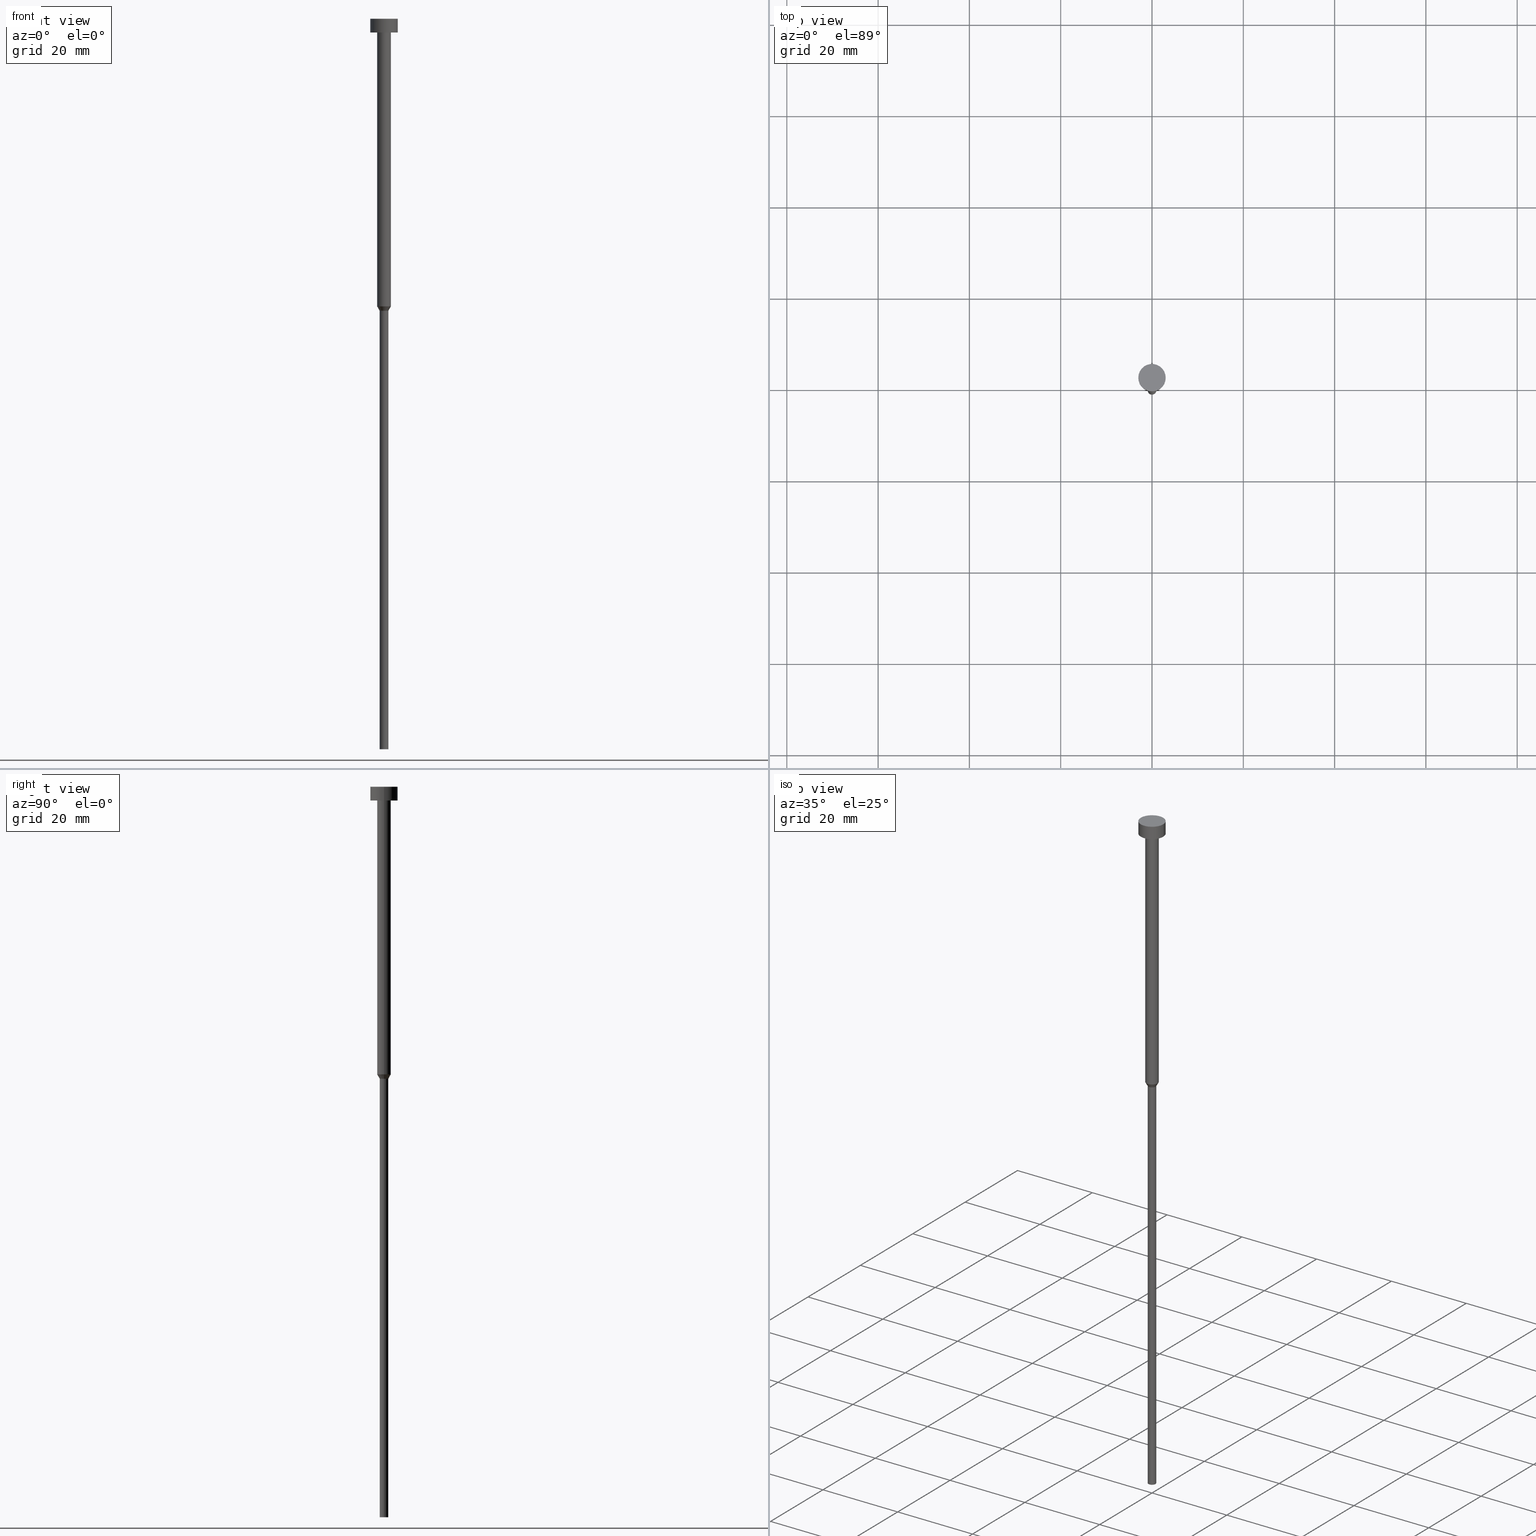
[diagram: canonical four-view strip — front | top / right | iso, engineering-drawing reading convention]
A machine part, canonical four-view strip (front | top / right | iso — engineering-drawing reading convention). The complete STEP part file that produces these views, byte-faithful:
ISO-10303-21;
HEADER;
FILE_DESCRIPTION (( 'STEP AP203' ),
    '1' );
FILE_NAME ('4d61.STEP',
    '2023-02-13T10:01:38',
    ( '' ),
    ( '' ),
    'SwSTEP 2.0',
    'SolidWorks 2019',
    '' );
FILE_SCHEMA (( 'CONFIG_CONTROL_DESIGN' ));
ENDSEC;

DATA;
#1 = PRODUCT_RELATED_PRODUCT_CATEGORY ( 'detail', '', ( #353 ) ) ;
#2 = DIRECTION ( 'NONE',  ( 1.000000000000000000, 0.000000000000000000, 0.000000000000000000 ) ) ;
#3 = ORIENTED_EDGE ( 'NONE', *, *, #245, .F. ) ;
#4 = EDGE_CURVE ( 'NONE', #87, #135, #141, .T. ) ;
#5 = EDGE_LOOP ( 'NONE', ( #285, #322, #126, #305 ) ) ;
#6 = VERTEX_POINT ( 'NONE', #338 ) ;
#7 = CARTESIAN_POINT ( 'NONE',  ( 0.000000000000000000, 0.000000000000000000, 0.000000000000000000 ) ) ;
#8 = FACE_OUTER_BOUND ( 'NONE', #60, .T. ) ;
#9 = AXIS2_PLACEMENT_3D ( 'NONE', #130, #159, #2 ) ;
#10 = FACE_BOUND ( 'NONE', #192, .T. ) ;
#11 = CARTESIAN_POINT ( 'NONE',  ( 0.000000000000000000, 0.000000000000000000, -63.95262794416288443 ) ) ;
#12 = CALENDAR_DATE ( 2023, 13, 2 ) ;
#13 = CARTESIAN_POINT ( 'NONE',  ( 0.000000000000000000, 0.000000000000000000, -160.0000000000000000 ) ) ;
#14 = ADVANCED_FACE ( 'NONE', ( #332 ), #92, .T. ) ;
#15 = CALENDAR_DATE ( 2023, 13, 2 ) ;
#16 = DIRECTION ( 'NONE',  ( -0.000000000000000000, -0.000000000000000000, 1.000000000000000000 ) ) ;
#17 = DATE_TIME_ROLE ( 'creation_date' ) ;
#18 = DIRECTION ( 'NONE',  ( -0.000000000000000000, -0.000000000000000000, 1.000000000000000000 ) ) ;
#19 = ORIENTED_EDGE ( 'NONE', *, *, #269, .T. ) ;
#20 = EDGE_CURVE ( 'NONE', #134, #162, #227, .T. ) ;
#21 = APPROVAL_PERSON_ORGANIZATION ( #46, #326, #259 ) ;
#22 = APPROVAL_DATE_TIME ( #202, #133 ) ;
#23 = LINE ( 'NONE', #351, #97 ) ;
#24 = DIRECTION ( 'NONE',  ( -0.4999999999999993339, 6.123233995736757408E-17, 0.8660254037844389297 ) ) ;
#25 = CARTESIAN_POINT ( 'NONE',  ( 1.500000000000000000, 0.000000000000000000, -3.000000000000000888 ) ) ;
#26 = VECTOR ( 'NONE', #337, 1000.000000000000114 ) ;
#27 = ORIENTED_EDGE ( 'NONE', *, *, #188, .T. ) ;
#28 = ORIENTED_EDGE ( 'NONE', *, *, #29, .T. ) ;
#29 = EDGE_CURVE ( 'NONE', #217, #277, #230, .T. ) ;
#30 = ORIENTED_EDGE ( 'NONE', *, *, #39, .T. ) ;
#31 = AXIS2_PLACEMENT_3D ( 'NONE', #89, #138, #308 ) ;
#32 = DIRECTION ( 'NONE',  ( 1.000000000000000000, 0.000000000000000000, 0.000000000000000000 ) ) ;
#33 = CARTESIAN_POINT ( 'NONE',  ( 3.000000000000000000, 0.000000000000000000, -3.000000000000000888 ) ) ;
#34 = CC_DESIGN_PERSON_AND_ORGANIZATION_ASSIGNMENT ( #42, #100, ( #190 ) ) ;
#35 = AXIS2_PLACEMENT_3D ( 'NONE', #325, #242, #53 ) ;
#36 = DIRECTION ( 'NONE',  ( 1.000000000000000000, 0.000000000000000000, 0.000000000000000000 ) ) ;
#37 = LOCAL_TIME ( 11, 1, 38.00000000000000000, #67 ) ;
#38 = CYLINDRICAL_SURFACE ( 'NONE', #191, 0.9499999999999998446 ) ;
#39 = EDGE_CURVE ( 'NONE', #41, #6, #173, .T. ) ;
#40 = PERSON_AND_ORGANIZATION ( #77, #140 ) ;
#41 = VERTEX_POINT ( 'NONE', #167 ) ;
#42 = PERSON_AND_ORGANIZATION ( #77, #140 ) ;
#43 = DIRECTION ( 'NONE',  ( -0.000000000000000000, -0.000000000000000000, 1.000000000000000000 ) ) ;
#44 = PERSON_AND_ORGANIZATION ( #77, #140 ) ;
#45 = DIRECTION ( 'NONE',  ( -0.000000000000000000, -0.000000000000000000, 1.000000000000000000 ) ) ;
#46 = PERSON_AND_ORGANIZATION ( #77, #140 ) ;
#47 = LINE ( 'NONE', #152, #189 ) ;
#48 = EDGE_CURVE ( 'NONE', #135, #277, #181, .T. ) ;
#49 = APPROVAL_ROLE ( '' ) ;
#50 = CYLINDRICAL_SURFACE ( 'NONE', #258, 3.000000000000000000 ) ;
#51 = DIRECTION ( 'NONE',  ( 1.000000000000000000, 0.000000000000000000, 0.000000000000000000 ) ) ;
#52 = CARTESIAN_POINT ( 'NONE',  ( 0.000000000000000000, 0.000000000000000000, 0.000000000000000000 ) ) ;
#53 = DIRECTION ( 'NONE',  ( 1.000000000000000000, 0.000000000000000000, 0.000000000000000000 ) ) ;
#54 = VERTEX_POINT ( 'NONE', #257 ) ;
#55 = LOCAL_TIME ( 11, 1, 38.00000000000000000, #347 ) ;
#56 = DIRECTION ( 'NONE',  ( 1.000000000000000000, 0.000000000000000000, 0.000000000000000000 ) ) ;
#57 = CIRCLE ( 'NONE', #115, 0.9499999999999998446 ) ;
#58 = ORIENTED_EDGE ( 'NONE', *, *, #157, .F. ) ;
#59 = VERTEX_POINT ( 'NONE', #168 ) ;
#60 = EDGE_LOOP ( 'NONE', ( #199, #114 ) ) ;
#61 = DIRECTION ( 'NONE',  ( 1.000000000000000000, 0.000000000000000000, 0.000000000000000000 ) ) ;
#62 = DIRECTION ( 'NONE',  ( -0.000000000000000000, -0.000000000000000000, 1.000000000000000000 ) ) ;
#63 = CONICAL_SURFACE ( 'NONE', #250, 1.500000000000000000, 0.5235987755982981495 ) ;
#64 = FACE_OUTER_BOUND ( 'NONE', #82, .T. ) ;
#65 = APPROVAL_STATUS ( 'not_yet_approved' ) ;
#66 = DIRECTION ( 'NONE',  ( -1.000000000000000000, 0.000000000000000000, -0.000000000000000000 ) ) ;
#67 = COORDINATED_UNIVERSAL_TIME_OFFSET ( 1, 0, .AHEAD. ) ;
#68 = DIRECTION ( 'NONE',  ( -0.000000000000000000, -0.000000000000000000, 1.000000000000000000 ) ) ;
#69 = CARTESIAN_POINT ( 'NONE',  ( 0.000000000000000000, 0.000000000000000000, 0.000000000000000000 ) ) ;
#70 = AXIS2_PLACEMENT_3D ( 'NONE', #296, #179, #290 ) ;
#71 = VECTOR ( 'NONE', #223, 1000.000000000000000 ) ;
#72 = APPROVAL_DATE_TIME ( #295, #326 ) ;
#73 = DIRECTION ( 'NONE',  ( 1.000000000000000000, 0.000000000000000000, 0.000000000000000000 ) ) ;
#74 = APPROVAL_DATE_TIME ( #287, #336 ) ;
#75 = DIRECTION ( 'NONE',  ( 1.000000000000000000, 0.000000000000000000, 0.000000000000000000 ) ) ;
#76 = ORIENTED_EDGE ( 'NONE', *, *, #256, .F. ) ;
#77 = PERSON ( 'NEUR�EN�', 'NEUR�EN�', 'NEUR�EN�', ('NEUR�EN�'), ('NEUR�EN�'), ('NEUR�EN�') ) ;
#78 = DIRECTION ( 'NONE',  ( 1.000000000000000000, 0.000000000000000000, 0.000000000000000000 ) ) ;
#79 = ADVANCED_FACE ( 'NONE', ( #145 ), #38, .T. ) ;
#80 = CLOSED_SHELL ( 'NONE', ( #210, #286, #184, #79, #14, #224, #84, #297, #136, #170, #104 ) ) ;
#81 = CARTESIAN_POINT ( 'NONE',  ( 0.000000000000000000, 0.000000000000000000, -63.95262794416288443 ) ) ;
#82 = EDGE_LOOP ( 'NONE', ( #310, #132 ) ) ;
#83 = CC_DESIGN_APPROVAL ( #326, ( #163 ) ) ;
#84 = ADVANCED_FACE ( 'NONE', ( #248 ), #174, .T. ) ;
#85 = EDGE_LOOP ( 'NONE', ( #198, #273, #76, #228 ) ) ;
#86 = ORIENTED_EDGE ( 'NONE', *, *, #20, .T. ) ;
#87 = VERTEX_POINT ( 'NONE', #33 ) ;
#88 = AXIS2_PLACEMENT_3D ( 'NONE', #81, #300, #56 ) ;
#89 = CARTESIAN_POINT ( 'NONE',  ( 0.000000000000000000, 0.000000000000000000, -3.673940397442059868E-16 ) ) ;
#90 = DIRECTION ( 'NONE',  ( 0.000000000000000000, -0.000000000000000000, 1.000000000000000000 ) ) ;
#91 = CARTESIAN_POINT ( 'NONE',  ( 0.9499999999999998446, 0.000000000000000000, -63.95262794416288443 ) ) ;
#92 = PLANE ( 'NONE',  #186 ) ;
#93 = CC_DESIGN_DATE_AND_TIME_ASSIGNMENT ( #343, #17, ( #107 ) ) ;
#94 = CALENDAR_DATE ( 2023, 13, 2 ) ;
#95 = ORIENTED_EDGE ( 'NONE', *, *, #117, .T. ) ;
#96 = LINE ( 'NONE', #348, #164 ) ;
#97 = VECTOR ( 'NONE', #16, 1000.000000000000000 ) ;
#98 = DIRECTION ( 'NONE',  ( 1.000000000000000000, 0.000000000000000000, 0.000000000000000000 ) ) ;
#99 = CIRCLE ( 'NONE', #195, 3.000000000000000000 ) ;
#100 = PERSON_AND_ORGANIZATION_ROLE ( 'design_supplier' ) ;
#101 = DIRECTION ( 'NONE',  ( -1.000000000000000000, 0.000000000000000000, -0.000000000000000000 ) ) ;
#102 = EDGE_LOOP ( 'NONE', ( #137, #19, #106, #3 ) ) ;
#103 = FACE_OUTER_BOUND ( 'NONE', #193, .T. ) ;
#104 = ADVANCED_FACE ( 'NONE', ( #8 ), #226, .T. ) ;
#105 = CARTESIAN_POINT ( 'NONE',  ( 0.000000000000000000, 0.000000000000000000, -63.00000000000000000 ) ) ;
#106 = ORIENTED_EDGE ( 'NONE', *, *, #4, .T. ) ;
#107 = PRODUCT_DEFINITION ( 'NEZN�M�', '', #190, #246 ) ;
#108 = ORIENTED_EDGE ( 'NONE', *, *, #293, .F. ) ;
#109 = ORIENTED_EDGE ( 'NONE', *, *, #4, .F. ) ;
#110 = EDGE_CURVE ( 'NONE', #134, #6, #120, .T. ) ;
#111 = DIRECTION ( 'NONE',  ( -0.000000000000000000, -0.000000000000000000, 1.000000000000000000 ) ) ;
#112 = LOCAL_TIME ( 11, 1, 38.00000000000000000, #155 ) ;
#113 = AXIS2_PLACEMENT_3D ( 'NONE', #344, #206, #73 ) ;
#114 = ORIENTED_EDGE ( 'NONE', *, *, #245, .T. ) ;
#115 = AXIS2_PLACEMENT_3D ( 'NONE', #254, #282, #36 ) ;
#116 = CARTESIAN_POINT ( 'NONE',  ( -3.000000000000000000, 3.673940397442059868E-16, 0.000000000000000000 ) ) ;
#117 = EDGE_CURVE ( 'NONE', #278, #41, #57, .T. ) ;
#118 = ORIENTED_EDGE ( 'NONE', *, *, #48, .F. ) ;
#119 = DIRECTION ( 'NONE',  ( 0.000000000000000000, 0.000000000000000000, -1.000000000000000000 ) ) ;
#120 = CIRCLE ( 'NONE', #274, 0.9499999999999998446 ) ;
#121 = DIRECTION ( 'NONE',  ( 1.000000000000000000, 0.000000000000000000, 0.000000000000000000 ) ) ;
#122 = CC_DESIGN_PERSON_AND_ORGANIZATION_ASSIGNMENT ( #44, #266, ( #107 ) ) ;
#123 = DIRECTION ( 'NONE',  ( 1.000000000000000000, 0.000000000000000000, 0.000000000000000000 ) ) ;
#124 = PERSON_AND_ORGANIZATION ( #77, #140 ) ;
#125 = DIRECTION ( 'NONE',  ( -0.000000000000000000, -0.000000000000000000, 1.000000000000000000 ) ) ;
#126 = ORIENTED_EDGE ( 'NONE', *, *, #234, .F. ) ;
#127 = APPROVAL_STATUS ( 'not_yet_approved' ) ;
#128 = DIRECTION ( 'NONE',  ( -0.000000000000000000, -0.000000000000000000, 1.000000000000000000 ) ) ;
#129 = DIRECTION ( 'NONE',  ( 1.000000000000000000, 0.000000000000000000, 0.000000000000000000 ) ) ;
#130 = CARTESIAN_POINT ( 'NONE',  ( 0.000000000000000000, 0.000000000000000000, -160.0000000000000000 ) ) ;
#131 = CC_DESIGN_APPROVAL ( #336, ( #107 ) ) ;
#132 = ORIENTED_EDGE ( 'NONE', *, *, #269, .F. ) ;
#133 = APPROVAL ( #127, 'NEUR�EN�' ) ;
#134 = VERTEX_POINT ( 'NONE', #91 ) ;
#135 = VERTEX_POINT ( 'NONE', #253 ) ;
#136 = ADVANCED_FACE ( 'NONE', ( #10, #64 ), #270, .T. ) ;
#137 = ORIENTED_EDGE ( 'NONE', *, *, #29, .F. ) ;
#138 = DIRECTION ( 'NONE',  ( -0.000000000000000000, -0.000000000000000000, 1.000000000000000000 ) ) ;
#139 = CIRCLE ( 'NONE', #148, 1.500000000000000000 ) ;
#140 = ORGANIZATION ( 'NEUR�EN�', 'NEUR�EN�', '' ) ;
#141 = LINE ( 'NONE', #313, #71 ) ;
#142 = EDGE_CURVE ( 'NONE', #6, #54, #96, .T. ) ;
#143 = DIRECTION ( 'NONE',  ( 1.000000000000000000, 0.000000000000000000, 0.000000000000000000 ) ) ;
#144 = CALENDAR_DATE ( 2023, 13, 2 ) ;
#145 = FACE_OUTER_BOUND ( 'NONE', #247, .T. ) ;
#146 = PERSON_AND_ORGANIZATION_ROLE ( 'creator' ) ;
#147 = CARTESIAN_POINT ( 'NONE',  ( 0.000000000000000000, 0.000000000000000000, -3.000000000000000888 ) ) ;
#148 = AXIS2_PLACEMENT_3D ( 'NONE', #263, #18, #123 ) ;
#149 = AXIS2_PLACEMENT_3D ( 'NONE', #105, #128, #98 ) ;
#150 = CARTESIAN_POINT ( 'NONE',  ( 0.000000000000000000, 0.000000000000000000, -3.000000000000000888 ) ) ;
#151 = APPROVAL_ROLE ( '' ) ;
#152 = CARTESIAN_POINT ( 'NONE',  ( -1.500000000000000000, 1.836970198721029934E-16, 0.000000000000000000 ) ) ;
#153 = ADVANCED_BREP_SHAPE_REPRESENTATION ( '4d61', ( #251, #268 ), #291 ) ;
#154 = ORIENTED_EDGE ( 'NONE', *, *, #197, .T. ) ;
#155 = COORDINATED_UNIVERSAL_TIME_OFFSET ( 1, 0, .AHEAD. ) ;
#156 = CARTESIAN_POINT ( 'NONE',  ( 0.000000000000000000, 0.000000000000000000, 0.000000000000000000 ) ) ;
#157 = EDGE_CURVE ( 'NONE', #54, #162, #260, .T. ) ;
#158 = FACE_OUTER_BOUND ( 'NONE', #102, .T. ) ;
#159 = DIRECTION ( 'NONE',  ( -0.000000000000000000, -0.000000000000000000, 1.000000000000000000 ) ) ;
#160 = DIRECTION ( 'NONE',  ( -0.000000000000000000, -0.000000000000000000, 1.000000000000000000 ) ) ;
#161 = CC_DESIGN_PERSON_AND_ORGANIZATION_ASSIGNMENT ( #124, #314, ( #163 ) ) ;
#162 = VERTEX_POINT ( 'NONE', #319 ) ;
#163 = SECURITY_CLASSIFICATION ( '', '', #237 ) ;
#164 = VECTOR ( 'NONE', #24, 1000.000000000000114 ) ;
#165 = EDGE_LOOP ( 'NONE', ( #154, #28, #118, #109 ) ) ;
#166 = EDGE_LOOP ( 'NONE', ( #108, #211, #349, #244 ) ) ;
#167 = CARTESIAN_POINT ( 'NONE',  ( -0.9499999999999998446, 1.163414459189985436E-16, -160.0000000000000000 ) ) ;
#168 = CARTESIAN_POINT ( 'NONE',  ( -1.500000000000000000, 1.836970198721029934E-16, -3.000000000000000888 ) ) ;
#169 = DIRECTION ( 'NONE',  ( 1.000000000000000000, 0.000000000000000000, 0.000000000000000000 ) ) ;
#170 = ADVANCED_FACE ( 'NONE', ( #158 ), #50, .T. ) ;
#171 = CIRCLE ( 'NONE', #345, 1.500000000000000000 ) ;
#172 = APPROVAL_PERSON_ORGANIZATION ( #312, #336, #49 ) ;
#173 = LINE ( 'NONE', #309, #334 ) ;
#174 = CONICAL_SURFACE ( 'NONE', #225, 1.500000000000000000, 0.5235987755982981495 ) ;
#175 = COORDINATED_UNIVERSAL_TIME_OFFSET ( 1, 0, .AHEAD. ) ;
#176 = CARTESIAN_POINT ( 'NONE',  ( 1.500000000000000000, 0.000000000000000000, -63.00000000000000000 ) ) ;
#177 = DATE_TIME_ROLE ( 'classification_date' ) ;
#178 = DIRECTION ( 'NONE',  ( 1.000000000000000000, 0.000000000000000000, 0.000000000000000000 ) ) ;
#179 = DIRECTION ( 'NONE',  ( -0.000000000000000000, -0.000000000000000000, 1.000000000000000000 ) ) ;
#180 = CC_DESIGN_APPROVAL ( #133, ( #190 ) ) ;
#181 = CIRCLE ( 'NONE', #31, 3.000000000000000000 ) ;
#182 = DIRECTION ( 'NONE',  ( 0.000000000000000000, 0.000000000000000000, -1.000000000000000000 ) ) ;
#183 = CARTESIAN_POINT ( 'NONE',  ( 0.000000000000000000, 0.000000000000000000, -3.673940397442059868E-16 ) ) ;
#184 = ADVANCED_FACE ( 'NONE', ( #315 ), #63, .T. ) ;
#185 = CARTESIAN_POINT ( 'NONE',  ( 0.000000000000000000, 0.000000000000000000, -3.000000000000000888 ) ) ;
#186 = AXIS2_PLACEMENT_3D ( 'NONE', #13, #119, #66 ) ;
#187 = APPLICATION_CONTEXT ( 'configuration controlled 3d designs of mechanical parts and assemblies' ) ;
#188 = EDGE_CURVE ( 'NONE', #278, #134, #23, .T. ) ;
#189 = VECTOR ( 'NONE', #265, 1000.000000000000000 ) ;
#190 = PRODUCT_DEFINITION_FORMATION_WITH_SPECIFIED_SOURCE ( 'LIBOVOLN�', '', #353, .NOT_KNOWN. ) ;
#191 = AXIS2_PLACEMENT_3D ( 'NONE', #7, #280, #32 ) ;
#192 = EDGE_LOOP ( 'NONE', ( #302, #329 ) ) ;
#193 = EDGE_LOOP ( 'NONE', ( #328, #303, #27, #236 ) ) ;
#194 = EDGE_LOOP ( 'NONE', ( #203, #281 ) ) ;
#195 = AXIS2_PLACEMENT_3D ( 'NONE', #185, #43, #51 ) ;
#196 = CARTESIAN_POINT ( 'NONE',  ( 0.000000000000000000, 0.000000000000000000, -63.00000000000000000 ) ) ;
#197 = EDGE_CURVE ( 'NONE', #87, #217, #272, .T. ) ;
#198 = ORIENTED_EDGE ( 'NONE', *, *, #110, .T. ) ;
#199 = ORIENTED_EDGE ( 'NONE', *, *, #48, .T. ) ;
#200 = APPLICATION_PROTOCOL_DEFINITION ( 'international standard', 'config_control_design', 1994, #330 ) ;
#201 = CC_DESIGN_DATE_AND_TIME_ASSIGNMENT ( #208, #177, ( #163 ) ) ;
#202 = DATE_AND_TIME ( #339, #112 ) ;
#203 = ORIENTED_EDGE ( 'NONE', *, *, #117, .F. ) ;
#204 = MECHANICAL_CONTEXT ( 'NONE', #187, 'mechanical' ) ;
#205 = CARTESIAN_POINT ( 'NONE',  ( -3.000000000000000000, 3.673940397442059868E-16, -3.000000000000000888 ) ) ;
#206 = DIRECTION ( 'NONE',  ( -0.000000000000000000, -0.000000000000000000, 1.000000000000000000 ) ) ;
#207 = AXIS2_PLACEMENT_3D ( 'NONE', #69, #235, #75 ) ;
#208 = DATE_AND_TIME ( #144, #55 ) ;
#209 = DIRECTION ( 'NONE',  ( 1.000000000000000000, 0.000000000000000000, 0.000000000000000000 ) ) ;
#210 = ADVANCED_FACE ( 'NONE', ( #238 ), #212, .T. ) ;
#211 = ORIENTED_EDGE ( 'NONE', *, *, #157, .T. ) ;
#212 = CYLINDRICAL_SURFACE ( 'NONE', #283, 3.000000000000000000 ) ;
#213 =( NAMED_UNIT ( * ) PLANE_ANGLE_UNIT ( ) SI_UNIT ( $, .RADIAN. ) );
#214 = CIRCLE ( 'NONE', #307, 3.000000000000000000 ) ;
#215 = LINE ( 'NONE', #275, #317 ) ;
#216 =( LENGTH_UNIT ( ) NAMED_UNIT ( * ) SI_UNIT ( .MILLI., .METRE. ) );
#217 = VERTEX_POINT ( 'NONE', #205 ) ;
#218 = LOCAL_TIME ( 11, 1, 38.00000000000000000, #175 ) ;
#219 = EDGE_LOOP ( 'NONE', ( #243, #306, #86, #58 ) ) ;
#220 = VECTOR ( 'NONE', #288, 1000.000000000000000 ) ;
#221 = CC_DESIGN_PERSON_AND_ORGANIZATION_ASSIGNMENT ( #229, #264, ( #353 ) ) ;
#222 = ORIENTED_EDGE ( 'NONE', *, *, #188, .F. ) ;
#223 = DIRECTION ( 'NONE',  ( -0.000000000000000000, -0.000000000000000000, 1.000000000000000000 ) ) ;
#224 = ADVANCED_FACE ( 'NONE', ( #103 ), #354, .T. ) ;
#225 = AXIS2_PLACEMENT_3D ( 'NONE', #196, #111, #61 ) ;
#226 = PLANE ( 'NONE',  #279 ) ;
#227 = LINE ( 'NONE', #176, #26 ) ;
#228 = ORIENTED_EDGE ( 'NONE', *, *, #20, .F. ) ;
#229 = PERSON_AND_ORGANIZATION ( #77, #140 ) ;
#230 = LINE ( 'NONE', #116, #220 ) ;
#231 = CARTESIAN_POINT ( 'NONE',  ( -3.000000000000000000, 3.673940397442059868E-16, -3.673940397442059868E-16 ) ) ;
#232 = CARTESIAN_POINT ( 'NONE',  ( 0.9499999999999998446, 0.000000000000000000, -160.0000000000000000 ) ) ;
#233 = CIRCLE ( 'NONE', #88, 0.9499999999999998446 ) ;
#234 = EDGE_CURVE ( 'NONE', #340, #59, #284, .T. ) ;
#235 = DIRECTION ( 'NONE',  ( -0.000000000000000000, -0.000000000000000000, 1.000000000000000000 ) ) ;
#236 = ORIENTED_EDGE ( 'NONE', *, *, #352, .F. ) ;
#237 = SECURITY_CLASSIFICATION_LEVEL ( 'unclassified' ) ;
#238 = FACE_OUTER_BOUND ( 'NONE', #165, .T. ) ;
#239 = PRODUCT_DEFINITION_SHAPE ( 'NONE', 'NONE',  #107 ) ;
#240 =( NAMED_UNIT ( * ) SI_UNIT ( $, .STERADIAN. ) SOLID_ANGLE_UNIT ( ) );
#241 = CIRCLE ( 'NONE', #9, 0.9499999999999998446 ) ;
#242 = DIRECTION ( 'NONE',  ( -0.000000000000000000, -0.000000000000000000, 1.000000000000000000 ) ) ;
#243 = ORIENTED_EDGE ( 'NONE', *, *, #142, .F. ) ;
#244 = ORIENTED_EDGE ( 'NONE', *, *, #276, .F. ) ;
#245 = EDGE_CURVE ( 'NONE', #277, #135, #214, .T. ) ;
#246 = DESIGN_CONTEXT ( 'detailed design', #330, 'design' ) ;
#247 = EDGE_LOOP ( 'NONE', ( #95, #30, #331, #222 ) ) ;
#248 = FACE_OUTER_BOUND ( 'NONE', #219, .T. ) ;
#249 = DIRECTION ( 'NONE',  ( -0.000000000000000000, -0.000000000000000000, 1.000000000000000000 ) ) ;
#250 = AXIS2_PLACEMENT_3D ( 'NONE', #321, #68, #129 ) ;
#251 = MANIFOLD_SOLID_BREP ( 'Rotovat1', #80 ) ;
#252 = APPROVAL_PERSON_ORGANIZATION ( #40, #133, #151 ) ;
#253 = CARTESIAN_POINT ( 'NONE',  ( 3.000000000000000000, 0.000000000000000000, -3.673940397442059868E-16 ) ) ;
#254 = CARTESIAN_POINT ( 'NONE',  ( 0.000000000000000000, 0.000000000000000000, -160.0000000000000000 ) ) ;
#255 = DIRECTION ( 'NONE',  ( 1.000000000000000000, 0.000000000000000000, 0.000000000000000000 ) ) ;
#256 = EDGE_CURVE ( 'NONE', #162, #54, #139, .T. ) ;
#257 = CARTESIAN_POINT ( 'NONE',  ( -1.500000000000000000, 1.836970198721029934E-16, -63.00000000000000000 ) ) ;
#258 = AXIS2_PLACEMENT_3D ( 'NONE', #156, #125, #209 ) ;
#259 = APPROVAL_ROLE ( '' ) ;
#260 = CIRCLE ( 'NONE', #149, 1.500000000000000000 ) ;
#261 = DIRECTION ( 'NONE',  ( 1.000000000000000000, 0.000000000000000000, 0.000000000000000000 ) ) ;
#262 = SHAPE_DEFINITION_REPRESENTATION ( #239, #153 ) ;
#263 = CARTESIAN_POINT ( 'NONE',  ( 0.000000000000000000, 0.000000000000000000, -63.00000000000000000 ) ) ;
#264 = PERSON_AND_ORGANIZATION_ROLE ( 'design_owner' ) ;
#265 = DIRECTION ( 'NONE',  ( -0.000000000000000000, -0.000000000000000000, 1.000000000000000000 ) ) ;
#266 = PERSON_AND_ORGANIZATION_ROLE ( 'creator' ) ;
#267 = DIRECTION ( 'NONE',  ( -0.000000000000000000, -0.000000000000000000, 1.000000000000000000 ) ) ;
#268 = AXIS2_PLACEMENT_3D ( 'NONE', #52, #350, #255 ) ;
#269 = EDGE_CURVE ( 'NONE', #217, #87, #99, .T. ) ;
#270 = PLANE ( 'NONE',  #318 ) ;
#271 = FACE_OUTER_BOUND ( 'NONE', #166, .T. ) ;
#272 = CIRCLE ( 'NONE', #299, 3.000000000000000000 ) ;
#273 = ORIENTED_EDGE ( 'NONE', *, *, #142, .T. ) ;
#274 = AXIS2_PLACEMENT_3D ( 'NONE', #11, #62, #169 ) ;
#275 = CARTESIAN_POINT ( 'NONE',  ( 1.500000000000000000, 0.000000000000000000, 0.000000000000000000 ) ) ;
#276 = EDGE_CURVE ( 'NONE', #59, #340, #171, .T. ) ;
#277 = VERTEX_POINT ( 'NONE', #231 ) ;
#278 = VERTEX_POINT ( 'NONE', #232 ) ;
#279 = AXIS2_PLACEMENT_3D ( 'NONE', #335, #90, #143 ) ;
#280 = DIRECTION ( 'NONE',  ( -0.000000000000000000, -0.000000000000000000, 1.000000000000000000 ) ) ;
#281 = ORIENTED_EDGE ( 'NONE', *, *, #311, .F. ) ;
#282 = DIRECTION ( 'NONE',  ( -0.000000000000000000, -0.000000000000000000, 1.000000000000000000 ) ) ;
#283 = AXIS2_PLACEMENT_3D ( 'NONE', #292, #45, #178 ) ;
#284 = CIRCLE ( 'NONE', #70, 1.500000000000000000 ) ;
#285 = ORIENTED_EDGE ( 'NONE', *, *, #256, .T. ) ;
#286 = ADVANCED_FACE ( 'NONE', ( #342 ), #316, .T. ) ;
#287 = DATE_AND_TIME ( #12, #218 ) ;
#288 = DIRECTION ( 'NONE',  ( -0.000000000000000000, -0.000000000000000000, 1.000000000000000000 ) ) ;
#289 = COORDINATED_UNIVERSAL_TIME_OFFSET ( 1, 0, .AHEAD. ) ;
#290 = DIRECTION ( 'NONE',  ( 1.000000000000000000, 0.000000000000000000, 0.000000000000000000 ) ) ;
#291 =( GEOMETRIC_REPRESENTATION_CONTEXT ( 3 ) GLOBAL_UNCERTAINTY_ASSIGNED_CONTEXT ( ( #304 ) ) GLOBAL_UNIT_ASSIGNED_CONTEXT ( ( #216, #213, #240 ) ) REPRESENTATION_CONTEXT ( 'NONE', 'WORKASPACE' ) );
#292 = CARTESIAN_POINT ( 'NONE',  ( 0.000000000000000000, 0.000000000000000000, 0.000000000000000000 ) ) ;
#293 = EDGE_CURVE ( 'NONE', #54, #59, #47, .T. ) ;
#294 = DIRECTION ( 'NONE',  ( -0.000000000000000000, -0.000000000000000000, 1.000000000000000000 ) ) ;
#295 = DATE_AND_TIME ( #15, #37 ) ;
#296 = CARTESIAN_POINT ( 'NONE',  ( 0.000000000000000000, 0.000000000000000000, -3.000000000000000888 ) ) ;
#297 = ADVANCED_FACE ( 'NONE', ( #271 ), #355, .T. ) ;
#298 = CARTESIAN_POINT ( 'NONE',  ( 0.000000000000000000, -3.000000000000000000, -3.000000000000000888 ) ) ;
#299 = AXIS2_PLACEMENT_3D ( 'NONE', #150, #267, #121 ) ;
#300 = DIRECTION ( 'NONE',  ( -0.000000000000000000, -0.000000000000000000, 1.000000000000000000 ) ) ;
#301 = EDGE_CURVE ( 'NONE', #162, #340, #215, .T. ) ;
#302 = ORIENTED_EDGE ( 'NONE', *, *, #234, .T. ) ;
#303 = ORIENTED_EDGE ( 'NONE', *, *, #311, .T. ) ;
#304 = UNCERTAINTY_MEASURE_WITH_UNIT (LENGTH_MEASURE( 1.000000000000000082E-05 ), #216, 'distance_accuracy_value', 'NONE');
#305 = ORIENTED_EDGE ( 'NONE', *, *, #301, .F. ) ;
#306 = ORIENTED_EDGE ( 'NONE', *, *, #352, .T. ) ;
#307 = AXIS2_PLACEMENT_3D ( 'NONE', #183, #323, #78 ) ;
#308 = DIRECTION ( 'NONE',  ( 1.000000000000000000, 0.000000000000000000, 0.000000000000000000 ) ) ;
#309 = CARTESIAN_POINT ( 'NONE',  ( -0.9499999999999998446, 1.163414459189985436E-16, 0.000000000000000000 ) ) ;
#310 = ORIENTED_EDGE ( 'NONE', *, *, #197, .F. ) ;
#311 = EDGE_CURVE ( 'NONE', #41, #278, #241, .T. ) ;
#312 = PERSON_AND_ORGANIZATION ( #77, #140 ) ;
#313 = CARTESIAN_POINT ( 'NONE',  ( 3.000000000000000000, 0.000000000000000000, 0.000000000000000000 ) ) ;
#314 = PERSON_AND_ORGANIZATION_ROLE ( 'classification_officer' ) ;
#315 = FACE_OUTER_BOUND ( 'NONE', #85, .T. ) ;
#316 = CYLINDRICAL_SURFACE ( 'NONE', #113, 1.500000000000000000 ) ;
#317 = VECTOR ( 'NONE', #160, 1000.000000000000000 ) ;
#318 = AXIS2_PLACEMENT_3D ( 'NONE', #298, #182, #101 ) ;
#319 = CARTESIAN_POINT ( 'NONE',  ( 1.500000000000000000, 0.000000000000000000, -63.00000000000000000 ) ) ;
#320 = APPROVAL_STATUS ( 'not_yet_approved' ) ;
#321 = CARTESIAN_POINT ( 'NONE',  ( 0.000000000000000000, 0.000000000000000000, -63.00000000000000000 ) ) ;
#322 = ORIENTED_EDGE ( 'NONE', *, *, #293, .T. ) ;
#323 = DIRECTION ( 'NONE',  ( -0.000000000000000000, -0.000000000000000000, 1.000000000000000000 ) ) ;
#324 = CC_DESIGN_PERSON_AND_ORGANIZATION_ASSIGNMENT ( #341, #146, ( #190 ) ) ;
#325 = CARTESIAN_POINT ( 'NONE',  ( 0.000000000000000000, 0.000000000000000000, 0.000000000000000000 ) ) ;
#326 = APPROVAL ( #320, 'NEUR�EN�' ) ;
#327 = APPLICATION_PROTOCOL_DEFINITION ( 'international standard', 'config_control_design', 1994, #187 ) ;
#328 = ORIENTED_EDGE ( 'NONE', *, *, #39, .F. ) ;
#329 = ORIENTED_EDGE ( 'NONE', *, *, #276, .T. ) ;
#330 = APPLICATION_CONTEXT ( 'configuration controlled 3d designs of mechanical parts and assemblies' ) ;
#331 = ORIENTED_EDGE ( 'NONE', *, *, #110, .F. ) ;
#332 = FACE_OUTER_BOUND ( 'NONE', #194, .T. ) ;
#333 = LOCAL_TIME ( 11, 1, 38.00000000000000000, #289 ) ;
#334 = VECTOR ( 'NONE', #249, 1000.000000000000000 ) ;
#335 = CARTESIAN_POINT ( 'NONE',  ( 0.000000000000000000, 0.000000000000000000, -1.836970198721029934E-16 ) ) ;
#336 = APPROVAL ( #65, 'NEUR�EN�' ) ;
#337 = DIRECTION ( 'NONE',  ( 0.4999999999999993339, 0.000000000000000000, 0.8660254037844389297 ) ) ;
#338 = CARTESIAN_POINT ( 'NONE',  ( -0.9499999999999998446, 1.163414459189985436E-16, -63.95262794416288443 ) ) ;
#339 = CALENDAR_DATE ( 2023, 13, 2 ) ;
#340 = VERTEX_POINT ( 'NONE', #25 ) ;
#341 = PERSON_AND_ORGANIZATION ( #77, #140 ) ;
#342 = FACE_OUTER_BOUND ( 'NONE', #5, .T. ) ;
#343 = DATE_AND_TIME ( #94, #333 ) ;
#344 = CARTESIAN_POINT ( 'NONE',  ( 0.000000000000000000, 0.000000000000000000, 0.000000000000000000 ) ) ;
#345 = AXIS2_PLACEMENT_3D ( 'NONE', #147, #294, #261 ) ;
#346 = CC_DESIGN_SECURITY_CLASSIFICATION ( #163, ( #190 ) ) ;
#347 = COORDINATED_UNIVERSAL_TIME_OFFSET ( 1, 0, .AHEAD. ) ;
#348 = CARTESIAN_POINT ( 'NONE',  ( -1.500000000000000000, 1.836970198721029934E-16, -63.00000000000000000 ) ) ;
#349 = ORIENTED_EDGE ( 'NONE', *, *, #301, .T. ) ;
#350 = DIRECTION ( 'NONE',  ( 0.000000000000000000, 0.000000000000000000, 1.000000000000000000 ) ) ;
#351 = CARTESIAN_POINT ( 'NONE',  ( 0.9499999999999998446, 0.000000000000000000, 0.000000000000000000 ) ) ;
#352 = EDGE_CURVE ( 'NONE', #6, #134, #233, .T. ) ;
#353 = PRODUCT ( '4d61', '4d61', '', ( #204 ) ) ;
#354 = CYLINDRICAL_SURFACE ( 'NONE', #207, 0.9499999999999998446 ) ;
#355 = CYLINDRICAL_SURFACE ( 'NONE', #35, 1.500000000000000000 ) ;
ENDSEC;
END-ISO-10303-21;
